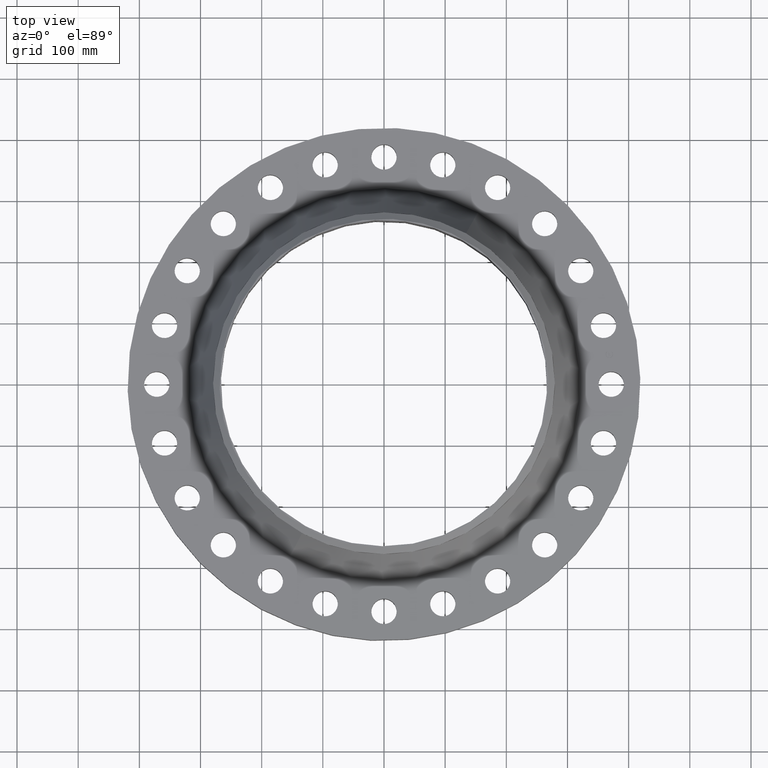
[diagram: clean part render]
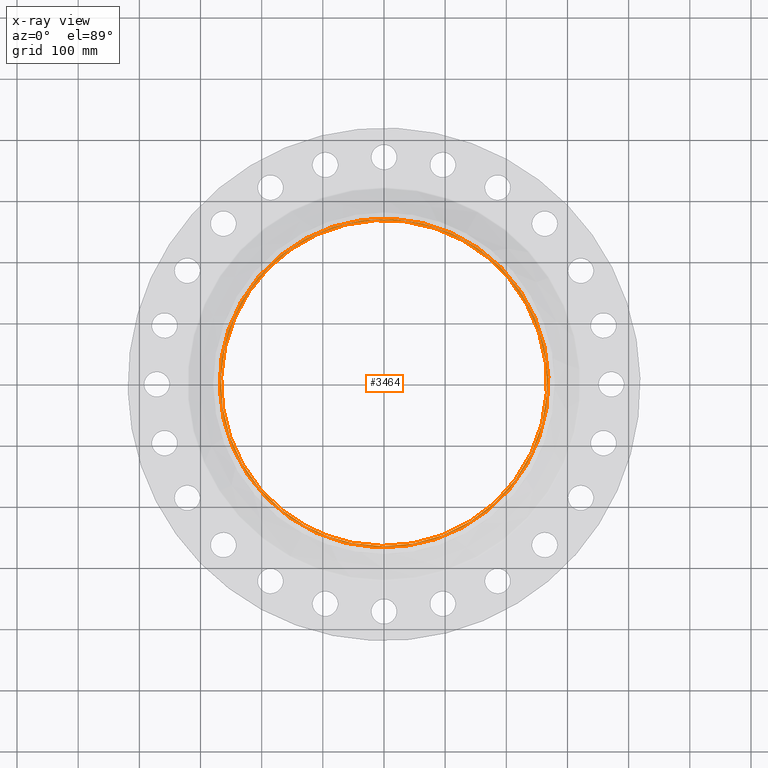
[diagram: x-ray — body ghosted, one internal face saturated and labeled with its STEP entity id]
A machine part, top view, then the same camera in x-ray: the body is ghosted and one INTERNAL B-rep face — a face not visible from any outside direction — is saturated and labeled: STEP entity #3464.
In plain terms, the highlighted planar face has unit normal (0, 0, -1).
Its self-contained STEP definition (entity closure, byte-faithful):
#2784=AXIS2_PLACEMENT_3D('Circle Axis2P3D',#2782,#2783,$) ;
#3440=AXIS2_PLACEMENT_3D('Plane Axis2P3D',#3437,#3438,#3439) ;
#3444=AXIS2_PLACEMENT_3D('Circle Axis2P3D',#3442,#3443,$) ;
#3453=AXIS2_PLACEMENT_3D('Circle Axis2P3D',#3451,#3452,$) ;
#2721=CARTESIAN_POINT('Control Point',(5.03396815535,9.21461689985,6.43000000003)) ;
#2722=CARTESIAN_POINT('Control Point',(5.7576824743,8.81924996547,6.43000000003)) ;
#2723=CARTESIAN_POINT('Control Point',(6.44258173524,8.35283254397,6.43000000003)) ;
#2724=CARTESIAN_POINT('Control Point',(7.07936214492,7.82044132668,6.43000000003)) ;
#2725=CARTESIAN_POINT('Control Point',(8.24011165114,6.63756795279,6.43000000003)) ;
#2726=CARTESIAN_POINT('Control Point',(9.14866002962,5.25154173413,6.43000000004)) ;
#2727=CARTESIAN_POINT('Control Point',(9.53323111842,4.51599107235,6.43000000004)) ;
#2728=CARTESIAN_POINT('Control Point',(10.1529577868,2.97895896751,6.43000000004)) ;
#2729=CARTESIAN_POINT('Control Point',(10.4619377673,1.35075130062,6.43000000004)) ;
#2730=CARTESIAN_POINT('Control Point',(10.5357520731,0.524022114821,6.43000000004)) ;
#2731=CARTESIAN_POINT('Control Point',(10.5201081363,-1.13316951625,6.43000000004)) ;
#2732=CARTESIAN_POINT('Control Point',(10.1824803176,-2.75567877382,6.43000000005)) ;
#2733=CARTESIAN_POINT('Control Point',(9.93430028149,-3.54772445942,6.43000000005)) ;
#2734=CARTESIAN_POINT('Control Point',(9.28566738697,-5.07278321336,6.43000000005)) ;
#2735=CARTESIAN_POINT('Control Point',(8.35283254397,-6.44258173524,6.43000000005)) ;
#2736=CARTESIAN_POINT('Control Point',(7.82044132668,-7.07936214491,6.43000000005)) ;
#2737=CARTESIAN_POINT('Control Point',(6.63756795279,-8.24011165113,6.43000000005)) ;
#2738=CARTESIAN_POINT('Control Point',(5.25154173414,-9.14866002961,6.43000000005)) ;
#2739=CARTESIAN_POINT('Control Point',(4.51599107236,-9.53323111842,6.43000000006)) ;
#2740=CARTESIAN_POINT('Control Point',(2.97895896751,-10.1529577868,6.43000000006)) ;
#2741=CARTESIAN_POINT('Control Point',(1.35075130063,-10.4619377673,6.43000000006)) ;
#2742=CARTESIAN_POINT('Control Point',(0.524022114826,-10.5357520731,6.43000000006)) ;
#2743=CARTESIAN_POINT('Control Point',(-1.13316951624,-10.5201081363,6.43000000006)) ;
#2744=CARTESIAN_POINT('Control Point',(-2.75567877382,-10.1824803176,6.43000000006)) ;
#2745=CARTESIAN_POINT('Control Point',(-3.54772445941,-9.9343002815,6.43000000006)) ;
#2746=CARTESIAN_POINT('Control Point',(-4.31025383638,-9.60998383423,6.43000000007)) ;
#2747=CARTESIAN_POINT('Control Point',(-5.03396815534,-9.21461689985,6.43000000007)) ;
#2748=CARTESIAN_POINT('Vertex',(5.03396815535,9.21461689985,6.43000000007)) ;
#2750=CARTESIAN_POINT('Vertex',(-5.03396815532,-9.21461689984,6.43000000003)) ;
#2782=CARTESIAN_POINT('Axis2P3D Location',(0.,0.,6.43000000007)) ;
#3437=CARTESIAN_POINT('Axis2P3D Location',(0.,11.,6.43000000003)) ;
#3442=CARTESIAN_POINT('Axis2P3D Location',(0.,-1.46651544801E-011,6.43000000003)) ;
#3446=CARTESIAN_POINT('Vertex',(5.07171819777,-9.283717889,6.43000000002)) ;
#3448=CARTESIAN_POINT('Vertex',(-5.07171819777,9.28371788899,6.43000000003)) ;
#3451=CARTESIAN_POINT('Axis2P3D Location',(3.08546189473E-011,2.19317127888E-012,6.43000000003)) ;
#2783=DIRECTION('Axis2P3D Direction',(-0.,0.,-0.0393700787402)) ;
#3438=DIRECTION('Axis2P3D Direction',(0.,0.,-0.0393700787402)) ;
#3439=DIRECTION('Axis2P3D XDirection',(0.0393700787402,0.,0.)) ;
#3443=DIRECTION('Axis2P3D Direction',(0.,0.,-0.0393700787402)) ;
#3452=DIRECTION('Axis2P3D Direction',(0.,0.,-0.0393700787402)) ;
#3457=ORIENTED_EDGE('',*,*,#3450,.T.) ;
#3458=ORIENTED_EDGE('',*,*,#3455,.T.) ;
#3461=ORIENTED_EDGE('',*,*,#2786,.T.) ;
#3462=ORIENTED_EDGE('',*,*,#2752,.T.) ;
#3463=FACE_BOUND('',#3460,.T.) ;
#3464=ADVANCED_FACE('PartBody',(#3459,#3463),#3441,.F.) ;
#2720=B_SPLINE_CURVE_WITH_KNOTS('',5,(#2721,#2722,#2723,#2724,#2725,#2726,#2727,#2728,#2729,#2730,#2731,#2732,#2733,#2734,#2735,#2736,#2737,#2738,#2739,#2740,#2741,#2742,#2743,#2744,#2745,#2746,#2747),.UNSPECIFIED.,.F.,.U.,(6,3,3,3,3,3,3,3,6),(-418.931380356,-314.198535267,-209.465690178,-104.732845089,0.,104.732845089,209.465690178,314.198535267,418.931380356),.UNSPECIFIED.) ;
#2785=CIRCLE('generated circle',#2784,10.5) ;
#3445=CIRCLE('generated circle',#3444,10.5787401575) ;
#3454=CIRCLE('generated circle',#3453,10.5787401575) ;
#2752=EDGE_CURVE('',#2749,#2751,#2720,.T.) ;
#2786=EDGE_CURVE('',#2751,#2749,#2785,.T.) ;
#3450=EDGE_CURVE('',#3447,#3449,#3445,.F.) ;
#3455=EDGE_CURVE('',#3449,#3447,#3454,.F.) ;
#3456=EDGE_LOOP('',(#3457,#3458)) ;
#3460=EDGE_LOOP('',(#3461,#3462)) ;
#3459=FACE_OUTER_BOUND('',#3456,.T.) ;
#3441=PLANE('',#3440) ;
#2749=VERTEX_POINT('',#2748) ;
#2751=VERTEX_POINT('',#2750) ;
#3447=VERTEX_POINT('',#3446) ;
#3449=VERTEX_POINT('',#3448) ;